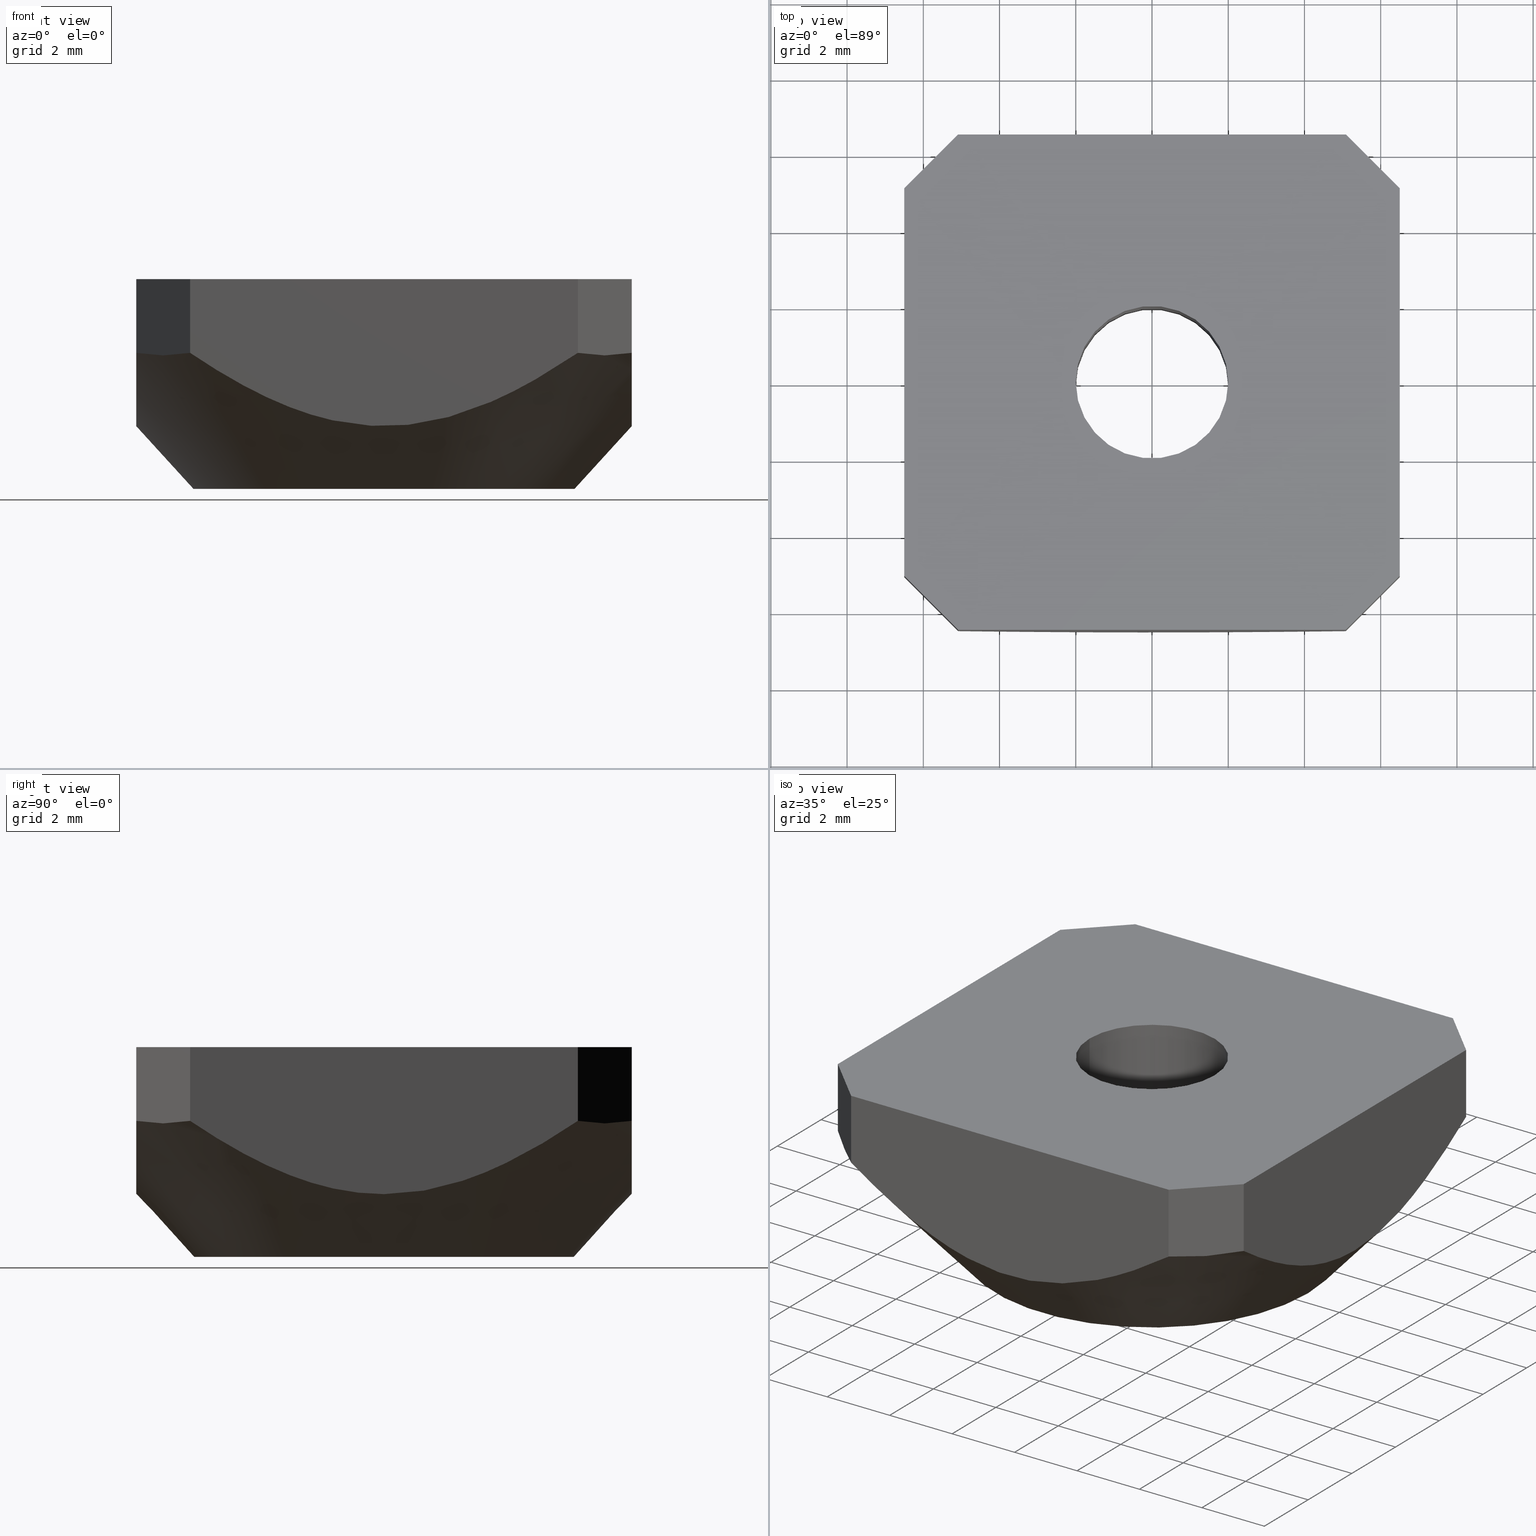
[diagram: canonical four-view strip — front | top / right | iso, engineering-drawing reading convention]
A machine part, canonical four-view strip (front | top / right | iso — engineering-drawing reading convention). The complete STEP part file that produces these views, byte-faithful:
ISO-10303-21;
HEADER;
FILE_DESCRIPTION (( 'STEP AP203' ),
    '1' );
FILE_NAME ('dado-M4-3D.STEP',
    '2018-11-12T12:18:28',
    ( '' ),
    ( '' ),
    'SwSTEP 2.0',
    'SolidWorks 2018',
    '' );
FILE_SCHEMA (( 'CONFIG_CONTROL_DESIGN' ));
ENDSEC;

DATA;
#1 = COORDINATED_UNIVERSAL_TIME_OFFSET ( 1, 0, .AHEAD. ) ;
#2 = LINE ( 'NONE', #493, #460 ) ;
#3 = EDGE_CURVE ( 'NONE', #543, #121, #117, .T. ) ;
#4 = ORIENTED_EDGE ( 'NONE', *, *, #296, .T. ) ;
#5 = CARTESIAN_POINT ( 'NONE',  ( 6.500000000000002665, 5.085786437626907741, 0.0000000000000000000 ) ) ;
#6 = VECTOR ( 'NONE', #164, 1000.000000000000114 ) ;
#7 = LINE ( 'NONE', #356, #351 ) ;
#8 = DIRECTION ( 'NONE',  ( -1.000000000000000000, 0.0000000000000000000, 0.0000000000000000000 ) ) ;
#9 = AXIS2_PLACEMENT_3D ( 'NONE', #262, #52, #8 ) ;
#10 = ORIENTED_EDGE ( 'NONE', *, *, #465, .T. ) ;
#11 = SECURITY_CLASSIFICATION ( '', '', #127 ) ;
#12 = CARTESIAN_POINT ( 'NONE',  ( 6.500000000012471801, 5.085786437614437716, -1.933334202284715309 ) ) ;
#13 = PERSON_AND_ORGANIZATION ( #225, #203 ) ;
#14 = LINE ( 'NONE', #302, #320 ) ;
#15 = ORIENTED_EDGE ( 'NONE', *, *, #499, .T. ) ;
#16 = EDGE_CURVE ( 'NONE', #169, #543, #7, .T. ) ;
#17 = FACE_OUTER_BOUND ( 'NONE', #42, .T. ) ;
#18 = VERTEX_POINT ( 'NONE', #161 ) ;
#19 = ADVANCED_FACE ( 'NONE', ( #497 ), #306, .T. ) ;
#20 = CARTESIAN_POINT ( 'NONE',  ( 6.500000000000000000, 4.703607954553438830, -2.191533235836048643 ) ) ;
#21 = CARTESIAN_POINT ( 'NONE',  ( -6.499999999966561859, 4.703623633186841069, -2.191522643361974332 ) ) ;
#22 = CARTESIAN_POINT ( 'NONE',  ( -6.500000000000000000, -2.258115985512184398, -3.449951132485600258 ) ) ;
#23 = CARTESIAN_POINT ( 'NONE',  ( -4.683470219463361509E-16, 1.335708759934739698E-15, -5.500000002871543892 ) ) ;
#24 = CARTESIAN_POINT ( 'NONE',  ( -8.673617379884035472E-16, 1.734723475976807094E-15, -1.911934207335162839 ) ) ;
#25 = ORIENTED_EDGE ( 'NONE', *, *, #176, .F. ) ;
#26 = CARTESIAN_POINT ( 'NONE',  ( -5.085786437677106697, 6.500000000012475354, -1.933334202242377842 ) ) ;
#27 = CARTESIAN_POINT ( 'NONE',  ( -4.683470219463361509E-16, 1.335708759934739698E-15, -5.500000002871543892 ) ) ;
#28 = CARTESIAN_POINT ( 'NONE',  ( -4.703608218064449176, -6.499999999966565412, -2.191533057788421779 ) ) ;
#29 = PERSON_AND_ORGANIZATION ( #225, #203 ) ;
#30 = CARTESIAN_POINT ( 'NONE',  ( -5.085786437626905965, -6.500000000000002665, 0.0000000000000000000 ) ) ;
#31 = CARTESIAN_POINT ( 'NONE',  ( 4.703623369059488191, -6.500000000000002665, -2.191522821825990341 ) ) ;
#32 = CIRCLE ( 'NONE', #431, 5.000000003148241667 ) ;
#33 = DIRECTION ( 'NONE',  ( -0.6738935147379921942, 1.646903699632265117E-16, 0.7388284853699641497 ) ) ;
#34 = CARTESIAN_POINT ( 'NONE',  ( 6.500000000012471801, 5.085786437614437716, -1.933334202284715309 ) ) ;
#35 = CARTESIAN_POINT ( 'NONE',  ( 5.085786437626906853, 6.500000000000003553, 0.0000000000000000000 ) ) ;
#36 = EDGE_CURVE ( 'NONE', #235, #486, #504, .T. ) ;
#37 = ORIENTED_EDGE ( 'NONE', *, *, #323, .T. ) ;
#38 = CARTESIAN_POINT ( 'NONE',  ( -6.499999999999999112, 5.085786437626910406, 0.0000000000000000000 ) ) ;
#39 = COORDINATED_UNIVERSAL_TIME_OFFSET ( 1, 0, .AHEAD. ) ;
#40 = APPLICATION_PROTOCOL_DEFINITION ( 'international standard', 'config_control_design', 1994, #249 ) ;
#41 = VECTOR ( 'NONE', #194, 1000.000000000000000 ) ;
#42 = EDGE_LOOP ( 'NONE', ( #532, #547, #238, #360 ) ) ;
#43 = DIRECTION ( 'NONE',  ( 0.0000000000000000000, 0.0000000000000000000, -1.000000000000000000 ) ) ;
#44 = VERTEX_POINT ( 'NONE', #177 ) ;
#45 = AXIS2_PLACEMENT_3D ( 'NONE', #154, #290, #471 ) ;
#46 = EDGE_LOOP ( 'NONE', ( #352, #283, #4, #96 ) ) ;
#47 = CARTESIAN_POINT ( 'NONE',  ( 6.500000000012471801, -5.085786437677110250, -1.933334202242371402 ) ) ;
#48 = PERSON_AND_ORGANIZATION ( #225, #203 ) ;
#49 = CARTESIAN_POINT ( 'NONE',  ( 6.499999999999999112, -3.516297865762419761, -2.888213576328807708 ) ) ;
#50 = ORIENTED_EDGE ( 'NONE', *, *, #226, .F. ) ;
#51 = EDGE_CURVE ( 'NONE', #155, #491, #305, .T. ) ;
#52 = DIRECTION ( 'NONE',  ( 0.0000000000000000000, 0.0000000000000000000, -1.000000000000000000 ) ) ;
#53 = ORIENTED_EDGE ( 'NONE', *, *, #118, .F. ) ;
#54 = DIRECTION ( 'NONE',  ( -0.7071067811865474617, 0.7071067811865474617, 0.0000000000000000000 ) ) ;
#55 = CALENDAR_DATE ( 2018, 12, 11 ) ;
#56 = ORIENTED_EDGE ( 'NONE', *, *, #51, .T. ) ;
#57 = EDGE_CURVE ( 'NONE', #121, #530, #288, .T. ) ;
#58 = CARTESIAN_POINT ( 'NONE',  ( -8.673617379884035472E-16, 1.734723475976807094E-15, -1.911934207335162839 ) ) ;
#59 = ORIENTED_EDGE ( 'NONE', *, *, #440, .T. ) ;
#60 = B_SPLINE_CURVE_WITH_KNOTS ( 'NONE', 3,
 ( #365, #421, #376, #428, #461, #156, #150, #472, #202, #469, #199, #508, #544, #515, #113, #518, #280, #26 ),
 .UNSPECIFIED., .F., .F.,
 ( 4, 2, 2, 2, 2, 2, 2, 2, 4 ),
 ( 8.321467144627602380E-14, 0.001375126083683638313, 0.002750252167284061942, 0.004125378250884485787, 0.005500504334484909198, 0.006875630418085332610, 0.008250756501685756888, 0.009625882585286179433, 0.01100100866888660371 ),
 .UNSPECIFIED. ) ;
#61 = DATE_AND_TIME ( #293, #441 ) ;
#62 = LINE ( 'NONE', #153, #344 ) ;
#63 = VERTEX_POINT ( 'NONE', #266 ) ;
#64 = ADVANCED_FACE ( 'NONE', ( #224 ), #562, .F. ) ;
#65 = DIRECTION ( 'NONE',  ( 0.7071067811865474617, 0.7071067811865474617, 0.0000000000000000000 ) ) ;
#66 = CARTESIAN_POINT ( 'NONE',  ( -0.9205997802961275456, -6.500000000000003553, -3.800373221879205232 ) ) ;
#67 = AXIS2_PLACEMENT_3D ( 'NONE', #24, #521, #112 ) ;
#68 = CALENDAR_DATE ( 2018, 12, 11 ) ;
#69 = VERTEX_POINT ( 'NONE', #449 ) ;
#70 = DIRECTION ( 'NONE',  ( -0.0000000000000000000, -0.0000000000000000000, 1.000000000000000000 ) ) ;
#71 = PLANE ( 'NONE',  #350 ) ;
#72 = CC_DESIGN_DATE_AND_TIME_ASSIGNMENT ( #196, #246, ( #11 ) ) ;
#73 = CARTESIAN_POINT ( 'NONE',  ( -2.258066242822474035, -6.500000000000002665, -3.449969955218917583 ) ) ;
#74 = CARTESIAN_POINT ( 'NONE',  ( 6.500000000000000888, 2.258115985482339383, -3.449951132496112738 ) ) ;
#75 = APPLICATION_PROTOCOL_DEFINITION ( 'international standard', 'config_control_design', 1994, #291 ) ;
#76 = CARTESIAN_POINT ( 'NONE',  ( 6.028595479244057032, -5.557190958382852486, -2.021894486498649446 ) ) ;
#77 = CARTESIAN_POINT ( 'NONE',  ( -6.499999999999999112, 1.564844549028617558E-15, -3.855463141347041045 ) ) ;
#78 = CIRCLE ( 'NONE', #134, 5.000000003148241667 ) ;
#79 = ORIENTED_EDGE ( 'NONE', *, *, #514, .T. ) ;
#80 = DIRECTION ( 'NONE',  ( 0.0000000000000000000, 0.0000000000000000000, 1.000000000000000000 ) ) ;
#81 = CARTESIAN_POINT ( 'NONE',  ( -5.085786437677106697, 6.500000000012475354, -1.933334202242377842 ) ) ;
#82 = AXIS2_PLACEMENT_3D ( 'NONE', #191, #429, #520 ) ;
#83 = ORIENTED_EDGE ( 'NONE', *, *, #554, .F. ) ;
#84 = PERSON_AND_ORGANIZATION_ROLE ( 'design_owner' ) ;
#85 = CARTESIAN_POINT ( 'NONE',  ( 5.085786437677106697, -6.500000000012474466, -1.933334202242371402 ) ) ;
#86 = PERSON_AND_ORGANIZATION ( #225, #203 ) ;
#87 = ORIENTED_EDGE ( 'NONE', *, *, #240, .T. ) ;
#88 = EDGE_CURVE ( 'NONE', #63, #560, #2, .T. ) ;
#89 = EDGE_LOOP ( 'NONE', ( #214, #99, #56, #425, #330, #131, #79, #566 ) ) ;
#90 = CARTESIAN_POINT ( 'NONE',  ( -5.085786437626904188, 6.500000000000005329, 0.0000000000000000000 ) ) ;
#91 = ORIENTED_EDGE ( 'NONE', *, *, #456, .T. ) ;
#92 = CARTESIAN_POINT ( 'NONE',  ( -5.085786437626904188, 6.500000000000005329, 0.0000000000000000000 ) ) ;
#93 = FACE_BOUND ( 'NONE', #452, .T. ) ;
#94 = DIRECTION ( 'NONE',  ( 0.0000000000000000000, -0.0000000000000000000, -1.000000000000000000 ) ) ;
#95 = ORIENTED_EDGE ( 'NONE', *, *, #57, .T. ) ;
#96 = ORIENTED_EDGE ( 'NONE', *, *, #16, .F. ) ;
#97 = DIRECTION ( 'NONE',  ( 0.0000000000000000000, 0.0000000000000000000, -1.000000000000000000 ) ) ;
#98 = LINE ( 'NONE', #379, #551 ) ;
#99 = ORIENTED_EDGE ( 'NONE', *, *, #545, .T. ) ;
#100 = ADVANCED_FACE ( 'NONE', ( #250 ), #409, .T. ) ;
#101 = CARTESIAN_POINT ( 'NONE',  ( 4.314592221427061780, -6.500000000000002665, -2.436609088893720632 ) ) ;
#102 = AXIS2_PLACEMENT_3D ( 'NONE', #30, #506, #522 ) ;
#103 = VECTOR ( 'NONE', #159, 1000.000000000000000 ) ;
#104 = CARTESIAN_POINT ( 'NONE',  ( -5.085786437626904188, 6.500000000000005329, 0.0000000000000000000 ) ) ;
#105 = EDGE_LOOP ( 'NONE', ( #399, #87, #91, #188 ) ) ;
#106 = DIRECTION ( 'NONE',  ( 0.0000000000000000000, 0.0000000000000000000, -1.000000000000000000 ) ) ;
#107 = DIRECTION ( 'NONE',  ( -0.7071067811865475727, -0.7071067811865475727, 0.0000000000000000000 ) ) ;
#108 = CARTESIAN_POINT ( 'NONE',  ( -6.499999999999999112, 1.564844549028617558E-15, -3.855463141347041045 ) ) ;
#109 = DIRECTION ( 'NONE',  ( 1.000000000000000000, 0.0000000000000000000, 1.734723474884541410E-16 ) ) ;
#110 = CARTESIAN_POINT ( 'NONE',  ( -5.000000003148242556, 2.347935449360633441E-15, -5.500000002871544780 ) ) ;
#111 = CARTESIAN_POINT ( 'NONE',  ( 6.500000000000000888, 0.4651318099034550402, -3.855463141347036604 ) ) ;
#112 = DIRECTION ( 'NONE',  ( 1.000000000000000000, 0.0000000000000000000, 1.048460935350610842E-16 ) ) ;
#113 = CARTESIAN_POINT ( 'NONE',  ( -3.516309706215212660, 6.500000000000002665, -2.888207160138617002 ) ) ;
#114 = FACE_OUTER_BOUND ( 'NONE', #438, .T. ) ;
#115 = CARTESIAN_POINT ( 'NONE',  ( 6.500000000000001776, 3.516244482516675429, -2.888242014042283312 ) ) ;
#116 = DIRECTION ( 'NONE',  ( -1.000000000000000000, 0.0000000000000000000, 0.0000000000000000000 ) ) ;
#117 = B_SPLINE_CURVE_WITH_KNOTS ( 'NONE', 3,
 ( #573, #490, #76, #47 ),
 .UNSPECIFIED., .F., .F.,
 ( 4, 4 ),
 ( 6.051050471646755322E-14, 0.002000000000007151873 ),
 .UNSPECIFIED. ) ;
#118 = EDGE_CURVE ( 'NONE', #444, #155, #349, .T. ) ;
#119 = CARTESIAN_POINT ( 'NONE',  ( -6.500000000000000000, 0.4650942893279675916, -3.855463141347040601 ) ) ;
#120 =( LENGTH_UNIT ( ) NAMED_UNIT ( * ) SI_UNIT ( .MILLI., .METRE. ) );
#121 = VERTEX_POINT ( 'NONE', #132 ) ;
#122 = PLANE ( 'NONE',  #363 ) ;
#123 = CONICAL_SURFACE ( 'NONE', #67, 8.272713925181706784, 0.7394660560889116940 ) ;
#124 = ORIENTED_EDGE ( 'NONE', *, *, #118, .T. ) ;
#125 = APPROVAL_STATUS ( 'not_yet_approved' ) ;
#126 = CC_DESIGN_SECURITY_CLASSIFICATION ( #11, ( #443 ) ) ;
#127 = SECURITY_CLASSIFICATION_LEVEL ( 'unclassified' ) ;
#128 = AXIS2_PLACEMENT_3D ( 'NONE', #58, #241, #559 ) ;
#129 = VERTEX_POINT ( 'NONE', #311 ) ;
#130 = FACE_OUTER_BOUND ( 'NONE', #105, .T. ) ;
#131 = ORIENTED_EDGE ( 'NONE', *, *, #375, .T. ) ;
#132 = CARTESIAN_POINT ( 'NONE',  ( 6.500000000012471801, -5.085786437677110250, -1.933334202242371402 ) ) ;
#133 = VECTOR ( 'NONE', #326, 1000.000000000000000 ) ;
#134 = AXIS2_PLACEMENT_3D ( 'NONE', #27, #201, #109 ) ;
#135 = EDGE_LOOP ( 'NONE', ( #362, #183, #37, #419, #228 ) ) ;
#136 = DIRECTION ( 'NONE',  ( -0.0000000000000000000, -0.0000000000000000000, 1.000000000000000000 ) ) ;
#137 = APPROVAL_DATE_TIME ( #354, #184 ) ;
#138 = LINE ( 'NONE', #334, #41 ) ;
#139 = ADVANCED_FACE ( 'NONE', ( #328 ), #217, .T. ) ;
#140 = EDGE_CURVE ( 'NONE', #63, #169, #138, .T. ) ;
#141 = EDGE_CURVE ( 'NONE', #276, #44, #32, .T. ) ;
#142 = PERSON_AND_ORGANIZATION ( #225, #203 ) ;
#143 = VECTOR ( 'NONE', #540, 1000.000000000000114 ) ;
#144 = ORIENTED_EDGE ( 'NONE', *, *, #514, .F. ) ;
#145 = CARTESIAN_POINT ( 'NONE',  ( 6.500000000000002665, 3.107041589949054661, -3.094886115538637128 ) ) ;
#146 = CARTESIAN_POINT ( 'NONE',  ( 3.516309706215214437, -6.500000000000002665, -2.888207160138610785 ) ) ;
#147 = CARTESIAN_POINT ( 'NONE',  ( -6.499999999999999112, -4.314560849031610523, -2.436628880319039236 ) ) ;
#148 = CARTESIAN_POINT ( 'NONE',  ( -5.557190958382846269, -6.028595479244061472, -2.021894486498652999 ) ) ;
#149 = DIRECTION ( 'NONE',  ( -1.000000000000000000, 0.0000000000000000000, 0.0000000000000000000 ) ) ;
#150 = CARTESIAN_POINT ( 'NONE',  ( 1.815581894366168791, 6.500000000000003553, -3.598278178908117297 ) ) ;
#151 = CARTESIAN_POINT ( 'NONE',  ( 5.085786437626906853, -6.500000000000002665, 0.0000000000000000000 ) ) ;
#152 = CARTESIAN_POINT ( 'NONE',  ( 0.9208216822838624083, -6.500000000000002665, -3.800336665431245819 ) ) ;
#153 = CARTESIAN_POINT ( 'NONE',  ( 6.500000000000000888, -5.085786437626907741, 0.0000000000000000000 ) ) ;
#154 = CARTESIAN_POINT ( 'NONE',  ( 0.0000000000000000000, 0.0000000000000000000, -5.500000000000000000 ) ) ;
#155 = VERTEX_POINT ( 'NONE', #281 ) ;
#156 = CARTESIAN_POINT ( 'NONE',  ( 2.258066242822476255, 6.500000000000003553, -3.449969955218920692 ) ) ;
#157 = PRODUCT ( 'dado-M4-3D', 'dado-M4-3D', '', ( #396 ) ) ;
#158 = DIRECTION ( 'NONE',  ( 0.0000000000000000000, 0.0000000000000000000, -1.000000000000000000 ) ) ;
#159 = DIRECTION ( 'NONE',  ( 0.0000000000000000000, -1.000000000000000000, -0.0000000000000000000 ) ) ;
#160 = CARTESIAN_POINT ( 'NONE',  ( -6.500000000000000000, -4.703607954548214565, -2.191533235839579596 ) ) ;
#161 = CARTESIAN_POINT ( 'NONE',  ( -6.499999999999999112, 1.564844549028617558E-15, -3.855463141347041045 ) ) ;
#162 = AXIS2_PLACEMENT_3D ( 'NONE', #478, #348, #253 ) ;
#163 = CARTESIAN_POINT ( 'NONE',  ( -6.499999999999999112, 2.258188589613317809, -3.449924592231263798 ) ) ;
#164 = DIRECTION ( 'NONE',  ( 0.6738935147379919721, 8.216221638422233690E-17, 0.7388284853699643717 ) ) ;
#165 = CARTESIAN_POINT ( 'NONE',  ( 5.557190958393293911, 6.028595479233616494, -2.021894486500614985 ) ) ;
#166 = CALENDAR_DATE ( 2018, 12, 11 ) ;
#167 = DIRECTION ( 'NONE',  ( 0.0000000000000000000, 0.0000000000000000000, 1.000000000000000000 ) ) ;
#168 = LINE ( 'NONE', #477, #103 ) ;
#169 = VERTEX_POINT ( 'NONE', #151 ) ;
#170 = APPROVAL_STATUS ( 'not_yet_approved' ) ;
#171 = EDGE_CURVE ( 'NONE', #69, #395, #494, .T. ) ;
#172 = PERSON_AND_ORGANIZATION_ROLE ( 'classification_officer' ) ;
#173 = VECTOR ( 'NONE', #294, 1000.000000000000000 ) ;
#174 = ORIENTED_EDGE ( 'NONE', *, *, #57, .F. ) ;
#175 = SHAPE_DEFINITION_REPRESENTATION ( #496, #386 ) ;
#176 = EDGE_CURVE ( 'NONE', #395, #407, #370, .T. ) ;
#177 = CARTESIAN_POINT ( 'NONE',  ( 5.000000003148240779, 1.335708759934739698E-15, -5.500000002871543003 ) ) ;
#178 = ORIENTED_EDGE ( 'NONE', *, *, #141, .T. ) ;
#179 = AXIS2_PLACEMENT_3D ( 'NONE', #385, #80, #393 ) ;
#180 = DIRECTION ( 'NONE',  ( -0.7071067811865474617, -0.7071067811865474617, 0.0000000000000000000 ) ) ;
#181 = COORDINATED_UNIVERSAL_TIME_OFFSET ( 1, 0, .AHEAD. ) ;
#182 = EDGE_CURVE ( 'NONE', #129, #560, #185, .T. ) ;
#183 = ORIENTED_EDGE ( 'NONE', *, *, #554, .T. ) ;
#184 = APPROVAL ( #257, 'NON SPECIFICATO' ) ;
#185 = B_SPLINE_CURVE_WITH_KNOTS ( 'NONE', 3,
 ( #278, #198, #148, #473 ),
 .UNSPECIFIED., .F., .F.,
 ( 4, 4 ),
 ( 6.051111803072601847E-14, 0.002000000000007151873 ),
 .UNSPECIFIED. ) ;
#186 = ADVANCED_FACE ( 'NONE', ( #17 ), #463, .T. ) ;
#187 = VECTOR ( 'NONE', #557, 1000.000000000000000 ) ;
#188 = ORIENTED_EDGE ( 'NONE', *, *, #268, .F. ) ;
#189 = B_SPLINE_CURVE_WITH_KNOTS ( 'NONE', 3,
 ( #193, #236, #476, #284 ),
 .UNSPECIFIED., .F., .F.,
 ( 4, 4 ),
 ( 6.051050471646755322E-14, 0.002000000000007149704 ),
 .UNSPECIFIED. ) ;
#190 = ORIENTED_EDGE ( 'NONE', *, *, #213, .F. ) ;
#191 = CARTESIAN_POINT ( 'NONE',  ( 6.500000000000000888, -5.085786437626907741, 0.0000000000000000000 ) ) ;
#192 = ADVANCED_FACE ( 'NONE', ( #220 ), #470, .T. ) ;
#193 = CARTESIAN_POINT ( 'NONE',  ( -5.085786437677106697, 6.500000000012475354, -1.933334202242377842 ) ) ;
#194 = DIRECTION ( 'NONE',  ( 1.000000000000000000, 0.0000000000000000000, -0.0000000000000000000 ) ) ;
#195 = CARTESIAN_POINT ( 'NONE',  ( -6.500000000000000888, -5.085786437626906853, 0.0000000000000000000 ) ) ;
#196 = DATE_AND_TIME ( #68, #314 ) ;
#197 = VERTEX_POINT ( 'NONE', #549 ) ;
#198 = CARTESIAN_POINT ( 'NONE',  ( -6.028595479226078524, -5.557190958361346134, -2.021894486487704423 ) ) ;
#199 = CARTESIAN_POINT ( 'NONE',  ( -0.9208216822838610760, 6.500000000000002665, -3.800336665431251593 ) ) ;
#200 = CARTESIAN_POINT ( 'NONE',  ( -6.500000000000000888, -5.085786437626906853, 0.0000000000000000000 ) ) ;
#201 = DIRECTION ( 'NONE',  ( -1.112060755793410790E-16, 1.112060755793410790E-16, 1.000000000000000000 ) ) ;
#202 = CARTESIAN_POINT ( 'NONE',  ( 0.4648848418447535380, 6.500000000000003553, -3.855480798021075461 ) ) ;
#203 = ORGANIZATION ( 'NON SPECIFICATO', 'NON SPECIFICATO', '' ) ;
#204 = CARTESIAN_POINT ( 'NONE',  ( 5.085786437677108474, 6.500000000012474466, -1.933334202242375177 ) ) ;
#205 = CIRCLE ( 'NONE', #427, 2.000000000000000000 ) ;
#206 = EDGE_LOOP ( 'NONE', ( #190, #572 ) ) ;
#207 = CARTESIAN_POINT ( 'NONE',  ( -5.085786437677105809, -6.500000000012473578, -1.933334202242374511 ) ) ;
#208 = EDGE_CURVE ( 'NONE', #503, #69, #445, .T. ) ;
#209 = PERSON_AND_ORGANIZATION_ROLE ( 'creator' ) ;
#210 = DIRECTION ( 'NONE',  ( -1.000000000000000000, 0.0000000000000000000, 0.0000000000000000000 ) ) ;
#211 = VECTOR ( 'NONE', #158, 1000.000000000000000 ) ;
#212 = ORIENTED_EDGE ( 'NONE', *, *, #456, .F. ) ;
#213 = EDGE_CURVE ( 'NONE', #44, #276, #78, .T. ) ;
#214 = ORIENTED_EDGE ( 'NONE', *, *, #453, .T. ) ;
#215 = CALENDAR_DATE ( 2018, 12, 11 ) ;
#216 = VECTOR ( 'NONE', #436, 1000.000000000000000 ) ;
#217 = PLANE ( 'NONE',  #82 ) ;
#218 = ORIENTED_EDGE ( 'NONE', *, *, #219, .T. ) ;
#219 = EDGE_CURVE ( 'NONE', #503, #407, #355, .T. ) ;
#220 = FACE_OUTER_BOUND ( 'NONE', #46, .T. ) ;
#221 = CARTESIAN_POINT ( 'NONE',  ( 6.500000000000000888, -4.314590728831698918, -2.436610215365368148 ) ) ;
#222 = EDGE_LOOP ( 'NONE', ( #310, #505, #392, #368 ) ) ;
#223 = CARTESIAN_POINT ( 'NONE',  ( -8.272713925181710337, 2.747838738850358616E-15, -1.911934207335163727 ) ) ;
#224 = FACE_OUTER_BOUND ( 'NONE', #304, .T. ) ;
#225 = PERSON ( 'NON SPECIFICATO', 'NON SPECIFICATO', 'NON SPECIFICATO', ('NON SPECIFICATO'), ('NON SPECIFICATO'), ('NON SPECIFICATO') ) ;
#226 = EDGE_CURVE ( 'NONE', #530, #444, #230, .T. ) ;
#227 = UNCERTAINTY_MEASURE_WITH_UNIT (LENGTH_MEASURE( 1.000000000000000082E-05 ), #120, 'distance_accuracy_value', 'NONE');
#228 = ORIENTED_EDGE ( 'NONE', *, *, #499, .F. ) ;
#229 = CC_DESIGN_PERSON_AND_ORGANIZATION_ASSIGNMENT ( #29, #84, ( #157 ) ) ;
#230 = B_SPLINE_CURVE_WITH_KNOTS ( 'NONE', 3,
 ( #383, #111, #289, #342, #74, #145, #115, #274, #20, #401 ),
 .UNSPECIFIED., .F., .F.,
 ( 4, 2, 2, 2, 4 ),
 ( 0.005500282472162170040, 0.006875464021324488584, 0.008250645570486806260, 0.009625827119649123936, 0.01100100866881144161 ),
 .UNSPECIFIED. ) ;
#231 = ADVANCED_FACE ( 'NONE', ( #538, #271 ), #71, .T. ) ;
#232 = LINE ( 'NONE', #433, #434 ) ;
#233 = CARTESIAN_POINT ( 'NONE',  ( -2.000000000000000000, 0.0000000000000000000, 0.0000000000000000000 ) ) ;
#234 = CARTESIAN_POINT ( 'NONE',  ( -6.499999999999996447, 3.516297865762422870, -2.888213576328815702 ) ) ;
#235 = VERTEX_POINT ( 'NONE', #104 ) ;
#236 = CARTESIAN_POINT ( 'NONE',  ( -5.557190958361342581, 6.028595479226082077, -2.021894486487707532 ) ) ;
#237 = DIRECTION ( 'NONE',  ( -1.112060755793410790E-16, 1.112060755793410790E-16, 1.000000000000000000 ) ) ;
#238 = ORIENTED_EDGE ( 'NONE', *, *, #3, .T. ) ;
#239 = CARTESIAN_POINT ( 'NONE',  ( -5.085786437677105809, -6.500000000012473578, -1.933334202242374511 ) ) ;
#240 = EDGE_CURVE ( 'NONE', #491, #197, #415, .T. ) ;
#241 = DIRECTION ( 'NONE',  ( -1.112060755793410790E-16, 1.112060755793410790E-16, 1.000000000000000000 ) ) ;
#242 = DIRECTION ( 'NONE',  ( 0.7071067811865475727, -0.7071067811865475727, 0.0000000000000000000 ) ) ;
#243 = PERSON_AND_ORGANIZATION ( #225, #203 ) ;
#244 = LINE ( 'NONE', #381, #6 ) ;
#245 = CARTESIAN_POINT ( 'NONE',  ( 5.085786437626906853, 6.500000000000003553, 0.0000000000000000000 ) ) ;
#246 = DATE_TIME_ROLE ( 'classification_date' ) ;
#247 = CARTESIAN_POINT ( 'NONE',  ( -6.500000000000000000, 1.815724347486218138, -3.598234520951652637 ) ) ;
#248 = CARTESIAN_POINT ( 'NONE',  ( 0.0000000000000000000, 0.0000000000000000000, 0.0000000000000000000 ) ) ;
#249 = APPLICATION_CONTEXT ( 'configuration controlled 3d designs of mechanical parts and assemblies' ) ;
#250 = FACE_OUTER_BOUND ( 'NONE', #446, .T. ) ;
#251 = DIRECTION ( 'NONE',  ( -1.000000000000000000, -0.0000000000000000000, 0.0000000000000000000 ) ) ;
#252 = AXIS2_PLACEMENT_3D ( 'NONE', #195, #107, #327 ) ;
#253 = DIRECTION ( 'NONE',  ( 0.0000000000000000000, -0.0000000000000000000, 1.000000000000000000 ) ) ;
#254 = PRODUCT_DEFINITION ( 'NON CONOSCIUTO', '', #443, #256 ) ;
#255 = ORIENTED_EDGE ( 'NONE', *, *, #36, .F. ) ;
#256 = DESIGN_CONTEXT ( 'detailed design', #291, 'design' ) ;
#257 = APPROVAL_STATUS ( 'not_yet_approved' ) ;
#258 = APPROVAL_ROLE ( '' ) ;
#259 = VECTOR ( 'NONE', #33, 1000.000000000000114 ) ;
#260 = ORIENTED_EDGE ( 'NONE', *, *, #226, .T. ) ;
#261 = EDGE_CURVE ( 'NONE', #407, #395, #489, .T. ) ;
#262 = CARTESIAN_POINT ( 'NONE',  ( 0.0000000000000000000, 0.0000000000000000000, 0.0000000000000000000 ) ) ;
#263 = PERSON_AND_ORGANIZATION ( #225, #203 ) ;
#264 = VECTOR ( 'NONE', #420, 1000.000000000000000 ) ;
#265 = ORIENTED_EDGE ( 'NONE', *, *, #182, .F. ) ;
#266 = CARTESIAN_POINT ( 'NONE',  ( -5.085786437626905077, -6.500000000000002665, 0.0000000000000000000 ) ) ;
#267 = CARTESIAN_POINT ( 'NONE',  ( 6.500000000000000888, -0.9207822176421274207, -3.800343512463968842 ) ) ;
#268 = EDGE_CURVE ( 'NONE', #235, #555, #483, .T. ) ;
#269 = ADVANCED_FACE ( 'NONE', ( #295 ), #464, .T. ) ;
#270 = CC_DESIGN_APPROVAL ( #316, ( #254 ) ) ;
#271 = FACE_OUTER_BOUND ( 'NONE', #89, .T. ) ;
#272 = ORIENTED_EDGE ( 'NONE', *, *, #88, .F. ) ;
#273 = ADVANCED_FACE ( 'NONE', ( #455 ), #546, .F. ) ;
#274 = CARTESIAN_POINT ( 'NONE',  ( 6.500000000000002665, 4.314560848977908591, -2.436628880351495496 ) ) ;
#275 = CARTESIAN_POINT ( 'NONE',  ( 6.500000000000000888, -5.085786437626907741, 0.0000000000000000000 ) ) ;
#276 = VERTEX_POINT ( 'NONE', #110 ) ;
#277 = CARTESIAN_POINT ( 'NONE',  ( -6.499999999999996447, -1.815600839914668585, -3.598271834393967250 ) ) ;
#278 = CARTESIAN_POINT ( 'NONE',  ( -6.500000000012470913, -5.085786437677108474, -1.933334202242376954 ) ) ;
#279 = CARTESIAN_POINT ( 'NONE',  ( -4.314559355035862076, -6.500000000000002665, -2.436630007698925571 ) ) ;
#280 = CARTESIAN_POINT ( 'NONE',  ( -4.703623369059489079, 6.500000000000002665, -2.191522821825996559 ) ) ;
#281 = CARTESIAN_POINT ( 'NONE',  ( 6.500000000000000888, 5.085786437626908629, 0.0000000000000000000 ) ) ;
#282 = CARTESIAN_POINT ( 'NONE',  ( 0.0000000000000000000, 0.0000000000000000000, 0.0000000000000000000 ) ) ;
#283 = ORIENTED_EDGE ( 'NONE', *, *, #88, .T. ) ;
#284 = CARTESIAN_POINT ( 'NONE',  ( -6.500000000012470025, 5.085786437677112026, -1.933334202242378286 ) ) ;
#285 = DIRECTION ( 'NONE',  ( 1.000000000000000000, 0.0000000000000000000, 1.734723474884541410E-16 ) ) ;
#286 = CARTESIAN_POINT ( 'NONE',  ( 3.107124692420668577, -6.500000000000003553, -3.094845548749633579 ) ) ;
#287 = CARTESIAN_POINT ( 'NONE',  ( -6.500000000012470913, -5.085786437677108474, -1.933334202242376954 ) ) ;
#288 = B_SPLINE_CURVE_WITH_KNOTS ( 'NONE', 3,
 ( #495, #542, #221, #49, #358, #313, #406, #267, #447, #361 ),
 .UNSPECIFIED., .F., .F.,
 ( 4, 2, 2, 2, 4 ),
 ( 8.321661056377371081E-14, 0.001375070618102954174, 0.002750141236122692796, 0.004125211854142431418, 0.005500282472162170040 ),
 .UNSPECIFIED. ) ;
#289 = CARTESIAN_POINT ( 'NONE',  ( 6.500000000000000888, 0.9206392684270442439, -3.800366371404682475 ) ) ;
#290 = DIRECTION ( 'NONE',  ( -0.0000000000000000000, -0.0000000000000000000, 1.000000000000000000 ) ) ;
#291 = APPLICATION_CONTEXT ( 'configuration controlled 3d designs of mechanical parts and assemblies' ) ;
#292 = DIRECTION ( 'NONE',  ( 1.000000000000000000, 0.0000000000000000000, -0.0000000000000000000 ) ) ;
#293 = CALENDAR_DATE ( 2018, 12, 11 ) ;
#294 = DIRECTION ( 'NONE',  ( -0.0000000000000000000, -0.0000000000000000000, -1.000000000000000000 ) ) ;
#295 = FACE_OUTER_BOUND ( 'NONE', #301, .T. ) ;
#296 = EDGE_CURVE ( 'NONE', #560, #543, #318, .T. ) ;
#297 = ORIENTED_EDGE ( 'NONE', *, *, #240, .F. ) ;
#298 = PLANE ( 'NONE',  #162 ) ;
#299 = CC_DESIGN_DATE_AND_TIME_ASSIGNMENT ( #61, #394, ( #254 ) ) ;
#300 = CARTESIAN_POINT ( 'NONE',  ( -6.499999999999999112, 5.085786437626910406, 0.0000000000000000000 ) ) ;
#301 = EDGE_LOOP ( 'NONE', ( #144, #15, #337, #272 ) ) ;
#302 = CARTESIAN_POINT ( 'NONE',  ( 6.500000000000000888, 6.591949000000000730E-16, 0.0000000000000000000 ) ) ;
#303 = APPROVAL_PERSON_ORGANIZATION ( #86, #184, #258 ) ;
#304 = EDGE_LOOP ( 'NONE', ( #563, #218, #25, #468 ) ) ;
#305 = LINE ( 'NONE', #5, #143 ) ;
#306 = PLANE ( 'NONE',  #312 ) ;
#307 = ORIENTED_EDGE ( 'NONE', *, *, #341, .T. ) ;
#308 = CARTESIAN_POINT ( 'NONE',  ( 6.500000000000002665, 5.085786437626907741, 0.0000000000000000000 ) ) ;
#309 = CC_DESIGN_APPROVAL ( #184, ( #11 ) ) ;
#310 = ORIENTED_EDGE ( 'NONE', *, *, #219, .F. ) ;
#311 = CARTESIAN_POINT ( 'NONE',  ( -6.500000000012470913, -5.085786437677108474, -1.933334202242376954 ) ) ;
#312 = AXIS2_PLACEMENT_3D ( 'NONE', #308, #451, #54 ) ;
#313 = CARTESIAN_POINT ( 'NONE',  ( 6.500000000000000000, -2.258188589613314257, -3.449924592231258913 ) ) ;
#314 = LOCAL_TIME ( 13, 18, 28.00000000000000000, #39 ) ;
#315 = ORIENTED_EDGE ( 'NONE', *, *, #487, .F. ) ;
#316 = APPROVAL ( #170, 'NON SPECIFICATO' ) ;
#317 = CARTESIAN_POINT ( 'NONE',  ( -6.499999999999999112, -0.9206392684394899550, -3.800366371403174792 ) ) ;
#318 = B_SPLINE_CURVE_WITH_KNOTS ( 'NONE', 3,
 ( #239, #28, #279, #371, #332, #73, #335, #66, #378, #424, #152, #339, #426, #286, #146, #101, #31, #384 ),
 .UNSPECIFIED., .F., .F.,
 ( 4, 2, 2, 2, 2, 2, 2, 2, 4 ),
 ( 8.321574170978936394E-14, 0.001375126083683639398, 0.002750252167284061508, 0.004125378250884484052, 0.005500504334484906596, 0.006875630418085329140, 0.008250756501685751684, 0.009625882585286174228, 0.01100100866888659851 ),
 .UNSPECIFIED. ) ;
#319 = ADVANCED_FACE ( 'NONE', ( #114 ), #123, .T. ) ;
#320 = VECTOR ( 'NONE', #527, 1000.000000000000000 ) ;
#321 = LINE ( 'NONE', #200, #569 ) ;
#322 = VERTEX_POINT ( 'NONE', #275 ) ;
#323 = EDGE_CURVE ( 'NONE', #372, #18, #373, .T. ) ;
#324 = EDGE_LOOP ( 'NONE', ( #400, #53, #307, #297 ) ) ;
#325 = CC_DESIGN_PERSON_AND_ORGANIZATION_ASSIGNMENT ( #48, #485, ( #443 ) ) ;
#326 = DIRECTION ( 'NONE',  ( 0.0000000000000000000, 0.0000000000000000000, -1.000000000000000000 ) ) ;
#327 = DIRECTION ( 'NONE',  ( 0.7071067811865474617, -0.7071067811865474617, 0.0000000000000000000 ) ) ;
#328 = FACE_OUTER_BOUND ( 'NONE', #500, .T. ) ;
#329 = CARTESIAN_POINT ( 'NONE',  ( -2.000000000000000000, 0.0000000000000000000, -5.500000000000000000 ) ) ;
#330 = ORIENTED_EDGE ( 'NONE', *, *, #36, .T. ) ;
#331 = CARTESIAN_POINT ( 'NONE',  ( 5.085786437626905965, -6.500000000000003553, 0.0000000000000000000 ) ) ;
#332 = CARTESIAN_POINT ( 'NONE',  ( -3.107021229645464011, -6.500000000000003553, -3.094896613372096539 ) ) ;
#333 = B_SPLINE_CURVE_WITH_KNOTS ( 'NONE', 3,
 ( #108, #340, #317, #277, #22, #338, #413, #147, #160, #287 ),
 .UNSPECIFIED., .F., .F.,
 ( 4, 2, 2, 2, 4 ),
 ( 0.005500282472162164836, 0.006875464021343275639, 0.008250645570524385575, 0.009625827119705495510, 0.01100100866888660718 ),
 .UNSPECIFIED. ) ;
#334 = CARTESIAN_POINT ( 'NONE',  ( 8.326673000000000714E-16, -6.500000000000002665, 0.0000000000000000000 ) ) ;
#335 = CARTESIAN_POINT ( 'NONE',  ( -1.815581894366166571, -6.500000000000001776, -3.598278178908113745 ) ) ;
#336 = AXIS2_PLACEMENT_3D ( 'NONE', #479, #564, #292 ) ;
#337 = ORIENTED_EDGE ( 'NONE', *, *, #182, .T. ) ;
#338 = CARTESIAN_POINT ( 'NONE',  ( -6.499999999999999112, -3.107041589988807306, -3.094886115520043113 ) ) ;
#339 = CARTESIAN_POINT ( 'NONE',  ( 1.815743295979880711, -6.500000000000003553, -3.598228176136369694 ) ) ;
#340 = CARTESIAN_POINT ( 'NONE',  ( -6.500000000000000000, -0.4651318099098080694, -3.855463141347041045 ) ) ;
#341 = EDGE_CURVE ( 'NONE', #444, #197, #509, .T. ) ;
#342 = CARTESIAN_POINT ( 'NONE',  ( 6.500000000000000888, 1.815600839890428864, -3.598271834400735170 ) ) ;
#343 = CARTESIAN_POINT ( 'NONE',  ( 6.028595479215633546, 5.557190958371792888, -2.021894486489666409 ) ) ;
#344 = VECTOR ( 'NONE', #97, 1000.000000000000000 ) ;
#345 = CARTESIAN_POINT ( 'NONE',  ( -6.499999999999999112, 0.9207822176421314175, -3.800343512463973727 ) ) ;
#346 = ORIENTED_EDGE ( 'NONE', *, *, #3, .F. ) ;
#347 = PRODUCT_RELATED_PRODUCT_CATEGORY ( 'detail', '', ( #157 ) ) ;
#348 = DIRECTION ( 'NONE',  ( 0.0000000000000000000, 1.000000000000000000, 0.0000000000000000000 ) ) ;
#349 = LINE ( 'NONE', #498, #502 ) ;
#350 = AXIS2_PLACEMENT_3D ( 'NONE', #374, #523, #418 ) ;
#351 = VECTOR ( 'NONE', #353, 1000.000000000000000 ) ;
#352 = ORIENTED_EDGE ( 'NONE', *, *, #140, .F. ) ;
#353 = DIRECTION ( 'NONE',  ( 0.0000000000000000000, -0.0000000000000000000, -1.000000000000000000 ) ) ;
#354 = DATE_AND_TIME ( #215, #411 ) ;
#355 = LINE ( 'NONE', #512, #211 ) ;
#356 = CARTESIAN_POINT ( 'NONE',  ( 5.085786437626905965, -6.500000000000003553, 0.0000000000000000000 ) ) ;
#357 = ORIENTED_EDGE ( 'NONE', *, *, #487, .T. ) ;
#358 = CARTESIAN_POINT ( 'NONE',  ( 6.499999999999999112, -3.107104337365194535, -3.094856044108537763 ) ) ;
#359 = LINE ( 'NONE', #531, #216 ) ;
#360 = ORIENTED_EDGE ( 'NONE', *, *, #440, .F. ) ;
#361 = CARTESIAN_POINT ( 'NONE',  ( 6.500000000000000888, 2.268358371881253341E-15, -3.855463141347035716 ) ) ;
#362 = ORIENTED_EDGE ( 'NONE', *, *, #375, .F. ) ;
#363 = AXIS2_PLACEMENT_3D ( 'NONE', #300, #210, #167 ) ;
#364 = APPROVAL_DATE_TIME ( #517, #316 ) ;
#365 = CARTESIAN_POINT ( 'NONE',  ( 5.085786437677108474, 6.500000000012474466, -1.933334202242375177 ) ) ;
#366 = CONICAL_SURFACE ( 'NONE', #128, 8.272713925181706784, 0.7394660560889116940 ) ;
#367 = AXIS2_PLACEMENT_3D ( 'NONE', #552, #70, #561 ) ;
#368 = ORIENTED_EDGE ( 'NONE', *, *, #261, .F. ) ;
#369 = ADVANCED_FACE ( 'NONE', ( #93, #403 ), #388, .F. ) ;
#370 = CIRCLE ( 'NONE', #367, 2.000000000000000000 ) ;
#371 = CARTESIAN_POINT ( 'NONE',  ( -3.516232638360159868, -6.500000000000004441, -2.888248432145468669 ) ) ;
#372 = VERTEX_POINT ( 'NONE', #526 ) ;
#373 = B_SPLINE_CURVE_WITH_KNOTS ( 'NONE', 3,
 ( #474, #21, #507, #234, #553, #163, #247, #345, #119, #77 ),
 .UNSPECIFIED., .F., .F.,
 ( 4, 2, 2, 2, 4 ),
 ( 8.321467144627602380E-14, 0.001375070618102952223, 0.002750141236122689761, 0.004125211854142427081, 0.005500282472162164836 ),
 .UNSPECIFIED. ) ;
#374 = CARTESIAN_POINT ( 'NONE',  ( 8.326673000000000714E-16, 6.591949000000000730E-16, 0.0000000000000000000 ) ) ;
#375 = EDGE_CURVE ( 'NONE', #486, #458, #168, .T. ) ;
#376 = CARTESIAN_POINT ( 'NONE',  ( 4.314559355035864741, 6.500000000000004441, -2.436630007698926459 ) ) ;
#377 = ORIENTED_EDGE ( 'NONE', *, *, #465, .F. ) ;
#378 = CARTESIAN_POINT ( 'NONE',  ( -0.4648848418447529274, -6.500000000000003553, -3.855480798021071465 ) ) ;
#379 = CARTESIAN_POINT ( 'NONE',  ( 5.085786437626905965, -6.500000000000003553, 0.0000000000000000000 ) ) ;
#380 = DIRECTION ( 'NONE',  ( 0.0000000000000000000, 0.0000000000000000000, -1.000000000000000000 ) ) ;
#381 = CARTESIAN_POINT ( 'NONE',  ( 8.272713925181706784, 1.734723475976807094E-15, -1.911934207335161950 ) ) ;
#382 = LINE ( 'NONE', #223, #259 ) ;
#383 = CARTESIAN_POINT ( 'NONE',  ( 6.500000000000000888, 2.268358371881253341E-15, -3.855463141347035716 ) ) ;
#384 = CARTESIAN_POINT ( 'NONE',  ( 5.085786437677106697, -6.500000000012474466, -1.933334202242371402 ) ) ;
#385 = CARTESIAN_POINT ( 'NONE',  ( 0.0000000000000000000, 0.0000000000000000000, 0.0000000000000000000 ) ) ;
#386 = ADVANCED_BREP_SHAPE_REPRESENTATION ( 'dado-M4-3D', ( #568, #179 ), #457 ) ;
#387 = ORIENTED_EDGE ( 'NONE', *, *, #390, .F. ) ;
#388 = PLANE ( 'NONE',  #336 ) ;
#389 =( NAMED_UNIT ( * ) PLANE_ANGLE_UNIT ( ) SI_UNIT ( $, .RADIAN. ) );
#390 = EDGE_CURVE ( 'NONE', #276, #18, #382, .T. ) ;
#391 = VECTOR ( 'NONE', #450, 1000.000000000000114 ) ;
#392 = ORIENTED_EDGE ( 'NONE', *, *, #171, .T. ) ;
#393 = DIRECTION ( 'NONE',  ( 1.000000000000000000, 0.0000000000000000000, 0.0000000000000000000 ) ) ;
#394 = DATE_TIME_ROLE ( 'creation_date' ) ;
#395 = VERTEX_POINT ( 'NONE', #329 ) ;
#396 = MECHANICAL_CONTEXT ( 'NONE', #249, 'mechanical' ) ;
#397 = DATE_AND_TIME ( #166, #402 ) ;
#398 = EDGE_CURVE ( 'NONE', #18, #129, #333, .T. ) ;
#399 = ORIENTED_EDGE ( 'NONE', *, *, #534, .F. ) ;
#400 = ORIENTED_EDGE ( 'NONE', *, *, #51, .F. ) ;
#401 = CARTESIAN_POINT ( 'NONE',  ( 6.500000000012471801, 5.085786437614437716, -1.933334202284715309 ) ) ;
#402 = LOCAL_TIME ( 13, 18, 28.00000000000000000, #454 ) ;
#403 = FACE_OUTER_BOUND ( 'NONE', #206, .T. ) ;
#404 = ORIENTED_EDGE ( 'NONE', *, *, #176, .T. ) ;
#405 = DIRECTION ( 'NONE',  ( -0.7071067811865475727, 0.7071067811865475727, 0.0000000000000000000 ) ) ;
#406 = CARTESIAN_POINT ( 'NONE',  ( 6.500000000000000888, -1.815724347486215251, -3.598234520951646864 ) ) ;
#407 = VERTEX_POINT ( 'NONE', #466 ) ;
#408 = AXIS2_PLACEMENT_3D ( 'NONE', #282, #380, #149 ) ;
#409 = PLANE ( 'NONE',  #417 ) ;
#410 = CC_DESIGN_PERSON_AND_ORGANIZATION_ASSIGNMENT ( #243, #209, ( #254 ) ) ;
#411 = LOCAL_TIME ( 13, 18, 28.00000000000000000, #181 ) ;
#412 = ORIENTED_EDGE ( 'NONE', *, *, #296, .F. ) ;
#413 = CARTESIAN_POINT ( 'NONE',  ( -6.500000000000000000, -3.516244482561148299, -2.888242014019203996 ) ) ;
#414 = LOCAL_TIME ( 13, 18, 28.00000000000000000, #1 ) ;
#415 = LINE ( 'NONE', #245, #187 ) ;
#416 = ORIENTED_EDGE ( 'NONE', *, *, #261, .T. ) ;
#417 = AXIS2_PLACEMENT_3D ( 'NONE', #90, #405, #180 ) ;
#418 = DIRECTION ( 'NONE',  ( 1.000000000000000000, 0.0000000000000000000, -0.0000000000000000000 ) ) ;
#419 = ORIENTED_EDGE ( 'NONE', *, *, #398, .T. ) ;
#420 = DIRECTION ( 'NONE',  ( -0.0000000000000000000, -0.0000000000000000000, -1.000000000000000000 ) ) ;
#421 = CARTESIAN_POINT ( 'NONE',  ( 4.703608218064447399, 6.499999999966565412, -2.191533057788421335 ) ) ;
#422 = COORDINATED_UNIVERSAL_TIME_OFFSET ( 1, 0, .AHEAD. ) ;
#423 = DIRECTION ( 'NONE',  ( -1.000000000000000000, 0.0000000000000000000, 0.0000000000000000000 ) ) ;
#424 = CARTESIAN_POINT ( 'NONE',  ( 0.4653350873336495885, -6.500000000000003553, -3.855445476124735649 ) ) ;
#425 = ORIENTED_EDGE ( 'NONE', *, *, #534, .T. ) ;
#426 = CARTESIAN_POINT ( 'NONE',  ( 2.258238322193993675, -6.500000000000004441, -3.449905772485376332 ) ) ;
#427 = AXIS2_PLACEMENT_3D ( 'NONE', #248, #43, #116 ) ;
#428 = CARTESIAN_POINT ( 'NONE',  ( 3.516232638360159868, 6.500000000000003553, -2.888248432145468669 ) ) ;
#429 = DIRECTION ( 'NONE',  ( 1.000000000000000000, -0.0000000000000000000, 0.0000000000000000000 ) ) ;
#430 = CARTESIAN_POINT ( 'NONE',  ( -6.500000000000000888, -5.085786437626906853, 0.0000000000000000000 ) ) ;
#431 = AXIS2_PLACEMENT_3D ( 'NONE', #23, #237, #285 ) ;
#432 = APPROVAL_PERSON_ORGANIZATION ( #488, #316, #482 ) ;
#433 = CARTESIAN_POINT ( 'NONE',  ( 8.326673000000000714E-16, 6.500000000000003553, 0.0000000000000000000 ) ) ;
#434 = VECTOR ( 'NONE', #251, 1000.000000000000000 ) ;
#435 = ORIENTED_EDGE ( 'NONE', *, *, #541, .T. ) ;
#436 = DIRECTION ( 'NONE',  ( 0.7071067811865473507, -0.7071067811865477948, 0.0000000000000000000 ) ) ;
#437 =( NAMED_UNIT ( * ) SI_UNIT ( $, .STERADIAN. ) SOLID_ANGLE_UNIT ( ) );
#438 = EDGE_LOOP ( 'NONE', ( #387, #178, #357, #174, #346, #412, #265, #442 ) ) ;
#439 = APPROVAL_ROLE ( '' ) ;
#440 = EDGE_CURVE ( 'NONE', #322, #121, #62, .T. ) ;
#441 = LOCAL_TIME ( 13, 18, 28.00000000000000000, #422 ) ;
#442 = ORIENTED_EDGE ( 'NONE', *, *, #398, .F. ) ;
#443 = PRODUCT_DEFINITION_FORMATION_WITH_SPECIFIED_SOURCE ( 'TUTTO', '', #157, .NOT_KNOWN. ) ;
#444 = VERTEX_POINT ( 'NONE', #12 ) ;
#445 = CIRCLE ( 'NONE', #567, 2.000000000000000000 ) ;
#446 = EDGE_LOOP ( 'NONE', ( #255, #484, #10, #83 ) ) ;
#447 = CARTESIAN_POINT ( 'NONE',  ( 6.500000000000002665, -0.4650942893279644830, -3.855463141347037048 ) ) ;
#448 = EDGE_LOOP ( 'NONE', ( #570, #519, #525, #377, #212, #539, #50, #315 ) ) ;
#449 = CARTESIAN_POINT ( 'NONE',  ( -2.000000000000000000, 0.0000000000000000000, 0.0000000000000000000 ) ) ;
#450 = DIRECTION ( 'NONE',  ( -0.7071067811865474617, -0.7071067811865474617, 0.0000000000000000000 ) ) ;
#451 = DIRECTION ( 'NONE',  ( 0.7071067811865475727, 0.7071067811865475727, 0.0000000000000000000 ) ) ;
#452 = EDGE_LOOP ( 'NONE', ( #404, #416 ) ) ;
#453 = EDGE_CURVE ( 'NONE', #169, #322, #98, .T. ) ;
#454 = COORDINATED_UNIVERSAL_TIME_OFFSET ( 1, 0, .AHEAD. ) ;
#455 = FACE_OUTER_BOUND ( 'NONE', #222, .T. ) ;
#456 = EDGE_CURVE ( 'NONE', #197, #555, #60, .T. ) ;
#457 =( GEOMETRIC_REPRESENTATION_CONTEXT ( 3 ) GLOBAL_UNCERTAINTY_ASSIGNED_CONTEXT ( ( #227 ) ) GLOBAL_UNIT_ASSIGNED_CONTEXT ( ( #120, #389, #437 ) ) REPRESENTATION_CONTEXT ( 'NONE', 'WORKASPACE' ) );
#458 = VERTEX_POINT ( 'NONE', #430 ) ;
#459 = ADVANCED_FACE ( 'NONE', ( #529 ), #366, .T. ) ;
#460 = VECTOR ( 'NONE', #94, 1000.000000000000000 ) ;
#461 = CARTESIAN_POINT ( 'NONE',  ( 3.107021229645465343, 6.500000000000003553, -3.094896613372098315 ) ) ;
#462 = EDGE_LOOP ( 'NONE', ( #435, #536 ) ) ;
#463 = PLANE ( 'NONE',  #481 ) ;
#464 = PLANE ( 'NONE',  #252 ) ;
#465 = EDGE_CURVE ( 'NONE', #555, #372, #189, .T. ) ;
#466 = CARTESIAN_POINT ( 'NONE',  ( 2.000000000000000000, 2.449293598294706414E-16, -5.500000000000000000 ) ) ;
#467 = APPROVAL ( #125, 'NON SPECIFICATO' ) ;
#468 = ORIENTED_EDGE ( 'NONE', *, *, #171, .F. ) ;
#469 = CARTESIAN_POINT ( 'NONE',  ( -0.4653350873336496996, 6.500000000000003553, -3.855445476124739201 ) ) ;
#470 = PLANE ( 'NONE',  #102 ) ;
#471 = DIRECTION ( 'NONE',  ( -1.000000000000000000, 0.0000000000000000000, 0.0000000000000000000 ) ) ;
#472 = CARTESIAN_POINT ( 'NONE',  ( 0.9205997802961283227, 6.500000000000003553, -3.800373221879208341 ) ) ;
#473 = CARTESIAN_POINT ( 'NONE',  ( -5.085786437677105809, -6.500000000012473578, -1.933334202242374511 ) ) ;
#474 = CARTESIAN_POINT ( 'NONE',  ( -6.500000000012470025, 5.085786437677112026, -1.933334202242378286 ) ) ;
#475 = FACE_OUTER_BOUND ( 'NONE', #135, .T. ) ;
#476 = CARTESIAN_POINT ( 'NONE',  ( -6.028595479244057920, 5.557190958382851598, -2.021894486498657439 ) ) ;
#477 = CARTESIAN_POINT ( 'NONE',  ( -6.499999999999999112, 6.591949000000000730E-16, 0.0000000000000000000 ) ) ;
#478 = CARTESIAN_POINT ( 'NONE',  ( 5.085786437626906853, 6.500000000000003553, 0.0000000000000000000 ) ) ;
#479 = CARTESIAN_POINT ( 'NONE',  ( 7.734518000000000462E-16, 5.551114999999999878E-16, -5.500000000000000000 ) ) ;
#480 = CARTESIAN_POINT ( 'NONE',  ( 6.500000000000000888, 2.268358371881253341E-15, -3.855463141347035716 ) ) ;
#481 = AXIS2_PLACEMENT_3D ( 'NONE', #331, #242, #65 ) ;
#482 = APPROVAL_ROLE ( '' ) ;
#483 = LINE ( 'NONE', #513, #264 ) ;
#484 = ORIENTED_EDGE ( 'NONE', *, *, #268, .T. ) ;
#485 = PERSON_AND_ORGANIZATION_ROLE ( 'creator' ) ;
#486 = VERTEX_POINT ( 'NONE', #38 ) ;
#487 = EDGE_CURVE ( 'NONE', #44, #530, #244, .T. ) ;
#488 = PERSON_AND_ORGANIZATION ( #225, #203 ) ;
#489 = CIRCLE ( 'NONE', #45, 2.000000000000000000 ) ;
#490 = CARTESIAN_POINT ( 'NONE',  ( 5.557190958361344357, -6.028595479226081189, -2.021894486487701315 ) ) ;
#491 = VERTEX_POINT ( 'NONE', #35 ) ;
#492 = CC_DESIGN_PERSON_AND_ORGANIZATION_ASSIGNMENT ( #142, #172, ( #11 ) ) ;
#493 = CARTESIAN_POINT ( 'NONE',  ( -5.085786437626905965, -6.500000000000002665, 0.0000000000000000000 ) ) ;
#494 = LINE ( 'NONE', #233, #133 ) ;
#495 = CARTESIAN_POINT ( 'NONE',  ( 6.500000000012471801, -5.085786437677110250, -1.933334202242371402 ) ) ;
#496 = PRODUCT_DEFINITION_SHAPE ( 'NONE', 'NONE',  #254 ) ;
#497 = FACE_OUTER_BOUND ( 'NONE', #324, .T. ) ;
#498 = CARTESIAN_POINT ( 'NONE',  ( 6.500000000000000888, 5.085786437626907741, 0.0000000000000000000 ) ) ;
#499 = EDGE_CURVE ( 'NONE', #458, #129, #321, .T. ) ;
#500 = EDGE_LOOP ( 'NONE', ( #511, #59, #95, #260, #124 ) ) ;
#501 = CC_DESIGN_APPROVAL ( #467, ( #443 ) ) ;
#502 = VECTOR ( 'NONE', #136, 1000.000000000000000 ) ;
#503 = VERTEX_POINT ( 'NONE', #524 ) ;
#504 = LINE ( 'NONE', #92, #391 ) ;
#505 = ORIENTED_EDGE ( 'NONE', *, *, #541, .F. ) ;
#506 = DIRECTION ( 'NONE',  ( 0.0000000000000000000, -1.000000000000000000, 0.0000000000000000000 ) ) ;
#507 = CARTESIAN_POINT ( 'NONE',  ( -6.500000000000000888, 4.314590728831701583, -2.436610215365375254 ) ) ;
#508 = CARTESIAN_POINT ( 'NONE',  ( -1.815743295979880489, 6.500000000000003553, -3.598228176136374135 ) ) ;
#509 = B_SPLINE_CURVE_WITH_KNOTS ( 'NONE', 3,
 ( #34, #343, #165, #204 ),
 .UNSPECIFIED., .F., .F.,
 ( 4, 4 ),
 ( 1.619525838437646925E-14, 0.002000000000007150572 ),
 .UNSPECIFIED. ) ;
#510 = ADVANCED_FACE ( 'NONE', ( #475 ), #122, .T. ) ;
#511 = ORIENTED_EDGE ( 'NONE', *, *, #545, .F. ) ;
#512 = CARTESIAN_POINT ( 'NONE',  ( 2.000000000000000000, 2.449293598294706414E-16, 0.0000000000000000000 ) ) ;
#513 = CARTESIAN_POINT ( 'NONE',  ( -5.085786437626904188, 6.500000000000005329, 0.0000000000000000000 ) ) ;
#514 = EDGE_CURVE ( 'NONE', #458, #63, #359, .T. ) ;
#515 = CARTESIAN_POINT ( 'NONE',  ( -3.107124692420668133, 6.500000000000003553, -3.094845548749639796 ) ) ;
#516 = CARTESIAN_POINT ( 'NONE',  ( 0.0000000000000000000, 0.0000000000000000000, 0.0000000000000000000 ) ) ;
#517 = DATE_AND_TIME ( #55, #414 ) ;
#518 = CARTESIAN_POINT ( 'NONE',  ( -4.314592221427059116, 6.500000000000005329, -2.436609088893727293 ) ) ;
#519 = ORIENTED_EDGE ( 'NONE', *, *, #390, .T. ) ;
#520 = DIRECTION ( 'NONE',  ( 0.0000000000000000000, 0.0000000000000000000, -1.000000000000000000 ) ) ;
#521 = DIRECTION ( 'NONE',  ( -1.112060755793410790E-16, 1.112060755793410790E-16, 1.000000000000000000 ) ) ;
#522 = DIRECTION ( 'NONE',  ( 0.0000000000000000000, -0.0000000000000000000, -1.000000000000000000 ) ) ;
#523 = DIRECTION ( 'NONE',  ( 0.0000000000000000000, 0.0000000000000000000, 1.000000000000000000 ) ) ;
#524 = CARTESIAN_POINT ( 'NONE',  ( 2.000000000000000000, 2.449293598294706414E-16, 0.0000000000000000000 ) ) ;
#525 = ORIENTED_EDGE ( 'NONE', *, *, #323, .F. ) ;
#526 = CARTESIAN_POINT ( 'NONE',  ( -6.500000000012470025, 5.085786437677112026, -1.933334202242378286 ) ) ;
#527 = DIRECTION ( 'NONE',  ( -0.0000000000000000000, 1.000000000000000000, 0.0000000000000000000 ) ) ;
#528 = APPROVAL_PERSON_ORGANIZATION ( #13, #467, #439 ) ;
#529 = FACE_OUTER_BOUND ( 'NONE', #448, .T. ) ;
#530 = VERTEX_POINT ( 'NONE', #480 ) ;
#531 = CARTESIAN_POINT ( 'NONE',  ( -6.500000000000000888, -5.085786437626906853, 0.0000000000000000000 ) ) ;
#532 = ORIENTED_EDGE ( 'NONE', *, *, #453, .F. ) ;
#533 = PERSON_AND_ORGANIZATION_ROLE ( 'design_supplier' ) ;
#534 = EDGE_CURVE ( 'NONE', #491, #235, #232, .T. ) ;
#535 = APPROVAL_DATE_TIME ( #397, #467 ) ;
#536 = ORIENTED_EDGE ( 'NONE', *, *, #208, .T. ) ;
#537 = LINE ( 'NONE', #565, #173 ) ;
#538 = FACE_BOUND ( 'NONE', #462, .T. ) ;
#539 = ORIENTED_EDGE ( 'NONE', *, *, #341, .F. ) ;
#540 = DIRECTION ( 'NONE',  ( -0.7071067811865474617, 0.7071067811865474617, 0.0000000000000000000 ) ) ;
#541 = EDGE_CURVE ( 'NONE', #69, #503, #205, .T. ) ;
#542 = CARTESIAN_POINT ( 'NONE',  ( 6.499999999966564523, -4.703623633186840181, -2.191522643361967226 ) ) ;
#543 = VERTEX_POINT ( 'NONE', #85 ) ;
#544 = CARTESIAN_POINT ( 'NONE',  ( -2.258238322193991898, 6.500000000000002665, -3.449905772485382105 ) ) ;
#545 = EDGE_CURVE ( 'NONE', #322, #155, #14, .T. ) ;
#546 = CYLINDRICAL_SURFACE ( 'NONE', #408, 2.000000000000000000 ) ;
#547 = ORIENTED_EDGE ( 'NONE', *, *, #16, .T. ) ;
#548 = CLOSED_SHELL ( 'NONE', ( #64, #459, #231, #273, #139, #186, #192, #269, #510, #100, #550, #19, #369, #319 ) ) ;
#549 = CARTESIAN_POINT ( 'NONE',  ( 5.085786437677108474, 6.500000000012474466, -1.933334202242375177 ) ) ;
#550 = ADVANCED_FACE ( 'NONE', ( #130 ), #298, .T. ) ;
#551 = VECTOR ( 'NONE', #556, 1000.000000000000000 ) ;
#552 = CARTESIAN_POINT ( 'NONE',  ( 0.0000000000000000000, 0.0000000000000000000, -5.500000000000000000 ) ) ;
#553 = CARTESIAN_POINT ( 'NONE',  ( -6.500000000000000000, 3.107104337365197644, -3.094856044108543980 ) ) ;
#554 = EDGE_CURVE ( 'NONE', #486, #372, #537, .T. ) ;
#555 = VERTEX_POINT ( 'NONE', #81 ) ;
#556 = DIRECTION ( 'NONE',  ( 0.7071067811865473507, 0.7071067811865477948, 0.0000000000000000000 ) ) ;
#557 = DIRECTION ( 'NONE',  ( -0.0000000000000000000, 0.0000000000000000000, -1.000000000000000000 ) ) ;
#558 = CC_DESIGN_PERSON_AND_ORGANIZATION_ASSIGNMENT ( #263, #533, ( #443 ) ) ;
#559 = DIRECTION ( 'NONE',  ( 1.000000000000000000, 0.0000000000000000000, 1.048460935350610842E-16 ) ) ;
#560 = VERTEX_POINT ( 'NONE', #207 ) ;
#561 = DIRECTION ( 'NONE',  ( -1.000000000000000000, 0.0000000000000000000, 0.0000000000000000000 ) ) ;
#562 = CYLINDRICAL_SURFACE ( 'NONE', #9, 2.000000000000000000 ) ;
#563 = ORIENTED_EDGE ( 'NONE', *, *, #208, .F. ) ;
#564 = DIRECTION ( 'NONE',  ( 0.0000000000000000000, 0.0000000000000000000, 1.000000000000000000 ) ) ;
#565 = CARTESIAN_POINT ( 'NONE',  ( -6.499999999999999112, 5.085786437626910406, 0.0000000000000000000 ) ) ;
#566 = ORIENTED_EDGE ( 'NONE', *, *, #140, .T. ) ;
#567 = AXIS2_PLACEMENT_3D ( 'NONE', #516, #106, #423 ) ;
#568 = MANIFOLD_SOLID_BREP ( 'Importato1', #548 ) ;
#569 = VECTOR ( 'NONE', #571, 1000.000000000000000 ) ;
#570 = ORIENTED_EDGE ( 'NONE', *, *, #213, .T. ) ;
#571 = DIRECTION ( 'NONE',  ( -0.0000000000000000000, -0.0000000000000000000, -1.000000000000000000 ) ) ;
#572 = ORIENTED_EDGE ( 'NONE', *, *, #141, .F. ) ;
#573 = CARTESIAN_POINT ( 'NONE',  ( 5.085786437677106697, -6.500000000012474466, -1.933334202242371402 ) ) ;
ENDSEC;
END-ISO-10303-21;
